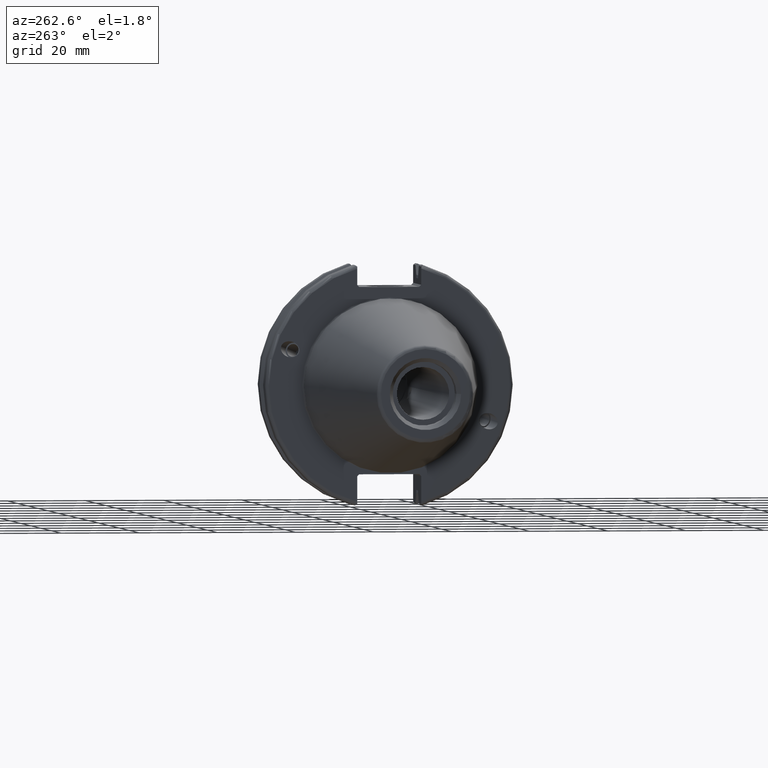
[diagram: clean part render]
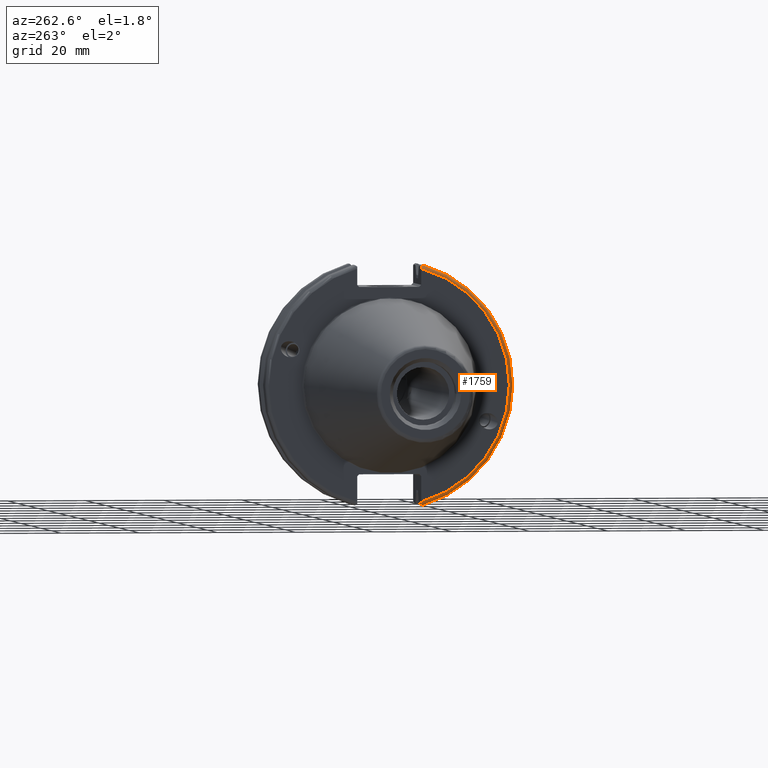
[diagram: same view with one face highlighted and labeled with its STEP entity id]
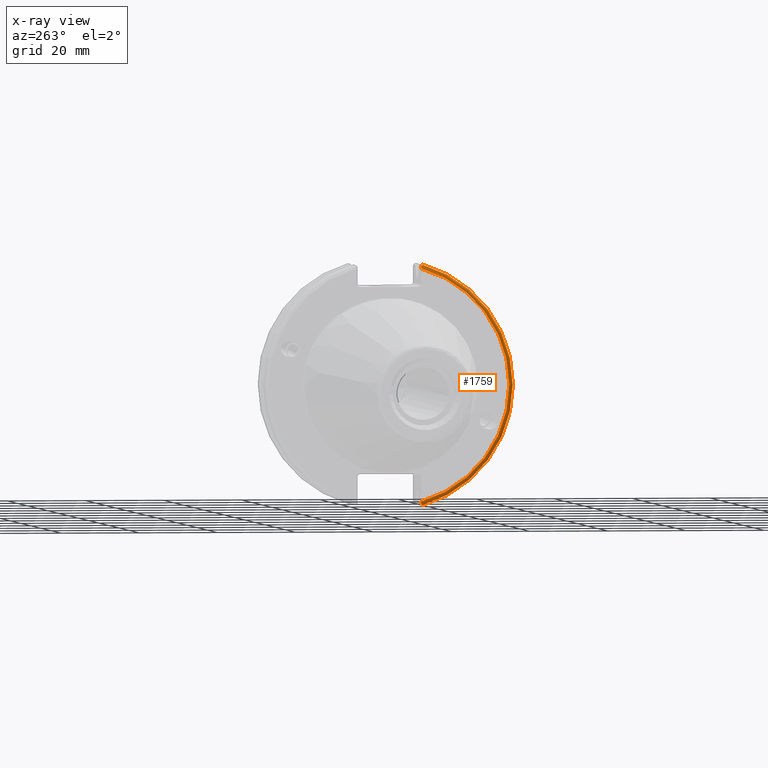
[diagram: x-ray of the same camera — body ghosted, the highlighted face saturated]
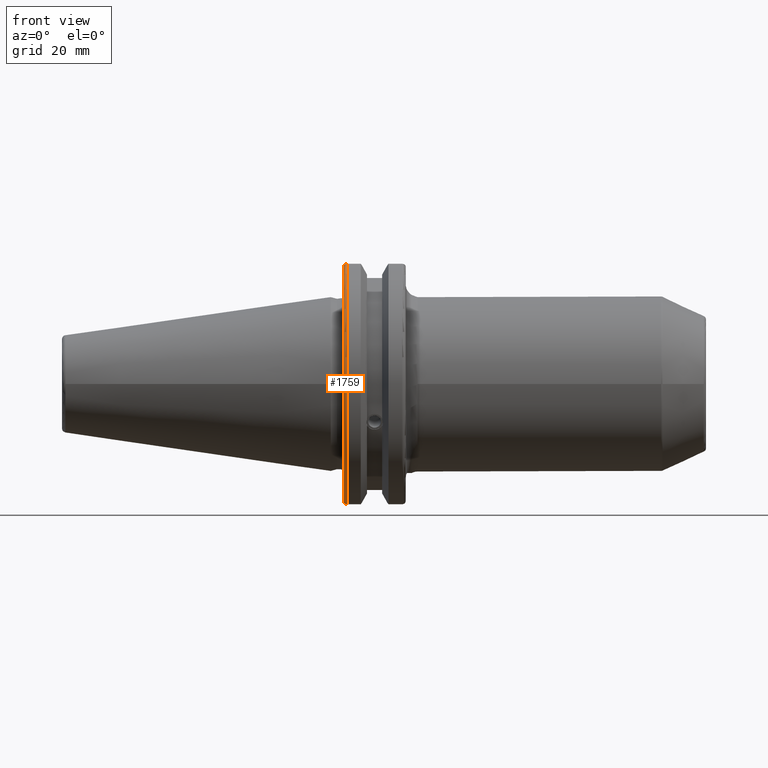
[diagram: same view with one face highlighted and labeled with its STEP entity id]
A machine part, auxiliary view. The second image highlights one B-rep face of the part: STEP entity #1759.
The next image is the same camera in x-ray: the body ghosted, the highlighted face saturated — about 0% of this face is hidden behind the body in this view.
A second angle (front view) of the same face is appended — the face is thin or edge-on in the first view.
In plain terms, the highlighted toroidal blend (fillet) surface has major radius 30.75 mm and minor (blend) radius 1 mm.
Its self-contained STEP definition (entity closure, byte-faithful):
#56=TOROIDAL_SURFACE('',#1969,30.75,1.);
#180=FACE_OUTER_BOUND('',#284,.T.);
#284=EDGE_LOOP('',(#1492,#1493,#1494,#1495,#1496,#1497));
#358=B_SPLINE_CURVE_WITH_KNOTS('',3,(#3341,#3342,#3343,#3344,#3345,#3346),
 .UNSPECIFIED.,.F.,.F.,(4,2,4),(0.0977210450333167,0.111963554372601,0.150804064902975),
 .UNSPECIFIED.);
#359=B_SPLINE_CURVE_WITH_KNOTS('',3,(#3367,#3368,#3369,#3370,#3371,#3372),
 .UNSPECIFIED.,.F.,.F.,(4,2,4),(0.452741154494498,0.491581665024872,0.505824174364157),
 .UNSPECIFIED.);
#360=B_SPLINE_CURVE_WITH_KNOTS('',3,(#3376,#3377,#3378,#3379,#3380,#3381,
#3382,#3383),.UNSPECIFIED.,.F.,.F.,(4,2,2,4),(-0.104180282751877,-0.0729784742461442,
-0.0343524753874977,0.),.UNSPECIFIED.);
#361=B_SPLINE_CURVE_WITH_KNOTS('',3,(#3386,#3387,#3388,#3389,#3390,#3391,
#3392,#3393),.UNSPECIFIED.,.F.,.F.,(4,2,2,4),(0.,0.0343524753874981,0.0729784742461436,
0.104180282751876),.UNSPECIFIED.);
#622=CIRCLE('',#1955,30.75);
#628=CIRCLE('',#1970,31.75);
#789=VERTEX_POINT('',#3218);
#790=VERTEX_POINT('',#3219);
#814=VERTEX_POINT('',#3340);
#820=VERTEX_POINT('',#3365);
#821=VERTEX_POINT('',#3375);
#822=VERTEX_POINT('',#3384);
#1022=EDGE_CURVE('',#789,#790,#622,.T.);
#1055=EDGE_CURVE('',#814,#789,#358,.T.);
#1065=EDGE_CURVE('',#790,#820,#359,.T.);
#1067=EDGE_CURVE('',#820,#821,#360,.T.);
#1068=EDGE_CURVE('',#821,#822,#628,.T.);
#1069=EDGE_CURVE('',#822,#814,#361,.T.);
#1492=ORIENTED_EDGE('',*,*,#1067,.T.);
#1493=ORIENTED_EDGE('',*,*,#1068,.T.);
#1494=ORIENTED_EDGE('',*,*,#1069,.T.);
#1495=ORIENTED_EDGE('',*,*,#1055,.T.);
#1496=ORIENTED_EDGE('',*,*,#1022,.T.);
#1497=ORIENTED_EDGE('',*,*,#1065,.T.);
#1759=ADVANCED_FACE('',(#180),#56,.T.);
#1955=AXIS2_PLACEMENT_3D('',#3220,#2357,#2358);
#1969=AXIS2_PLACEMENT_3D('',#3374,#2409,#2410);
#1970=AXIS2_PLACEMENT_3D('',#3385,#2411,#2412);
#2357=DIRECTION('center_axis',(1.,0.,0.));
#2358=DIRECTION('ref_axis',(0.,-1.,1.60812264967664E-16));
#2409=DIRECTION('center_axis',(1.,0.,0.));
#2410=DIRECTION('ref_axis',(0.,0.,-1.));
#2411=DIRECTION('center_axis',(-1.,0.,0.));
#2412=DIRECTION('ref_axis',(0.,-1.,1.60812264967664E-16));
#3218=CARTESIAN_POINT('',(3.175,-8.18999999999999,29.6392712461019));
#3219=CARTESIAN_POINT('',(3.175,-8.19,-29.6392712461019));
#3220=CARTESIAN_POINT('Origin',(3.175,0.,0.));
#3340=CARTESIAN_POINT('',(3.31912772509028,-8.19,30.1755016258903));
#3341=CARTESIAN_POINT('Ctrl Pts',(3.31912772509028,-8.19,30.1755016258903));
#3342=CARTESIAN_POINT('Ctrl Pts',(3.29318362718666,-8.19,30.131014531546));
#3343=CARTESIAN_POINT('Ctrl Pts',(3.27103565282437,-8.19,30.0852355256475));
#3344=CARTESIAN_POINT('Ctrl Pts',(3.20451443291695,-8.19,29.9212724384851));
#3345=CARTESIAN_POINT('Ctrl Pts',(3.175,-8.19,29.7687396145364));
#3346=CARTESIAN_POINT('Ctrl Pts',(3.175,-8.19,29.6392712461019));
#3365=CARTESIAN_POINT('',(3.31912772509028,-8.19,-30.1755016258903));
#3367=CARTESIAN_POINT('Ctrl Pts',(3.175,-8.19,-29.6392712461018));
#3368=CARTESIAN_POINT('Ctrl Pts',(3.175,-8.19,-29.7687396145364));
#3369=CARTESIAN_POINT('Ctrl Pts',(3.20451443291695,-8.19,-29.9212724384851));
#3370=CARTESIAN_POINT('Ctrl Pts',(3.27103565282437,-8.19,-30.0852355256475));
#3371=CARTESIAN_POINT('Ctrl Pts',(3.29318362718666,-8.19,-30.131014531546));
#3372=CARTESIAN_POINT('Ctrl Pts',(3.31912772509028,-8.19,-30.1755016258903));
#3374=CARTESIAN_POINT('Origin',(4.175,0.,0.));
#3375=CARTESIAN_POINT('',(4.175,-8.67204822802685,-30.5427254764662));
#3376=CARTESIAN_POINT('Ctrl Pts',(3.31912772509028,-8.19,-30.1755016258903));
#3377=CARTESIAN_POINT('Ctrl Pts',(3.36755369570113,-8.27036828330781,-30.2367261024977));
#3378=CARTESIAN_POINT('Ctrl Pts',(3.43232973376814,-8.34909446036477,-30.2966996242308));
#3379=CARTESIAN_POINT('Ctrl Pts',(3.58532758094931,-8.48862804755884,-30.4029961692546));
#3380=CARTESIAN_POINT('Ctrl Pts',(3.70655857052286,-8.56482138642532,-30.4610401774263));
#3381=CARTESIAN_POINT('Ctrl Pts',(3.92668295662254,-8.6471881193939,-30.5237870709558));
#3382=CARTESIAN_POINT('Ctrl Pts',(4.06049174870834,-8.67204822802686,-30.5427254764662));
#3383=CARTESIAN_POINT('Ctrl Pts',(4.175,-8.67204822802686,-30.5427254764662));
#3384=CARTESIAN_POINT('',(4.175,-8.67204822802685,30.5427254764662));
#3385=CARTESIAN_POINT('Origin',(4.175,0.,0.));
#3386=CARTESIAN_POINT('Ctrl Pts',(4.175,-8.67204822802686,30.5427254764662));
#3387=CARTESIAN_POINT('Ctrl Pts',(4.06049174870834,-8.67204822802686,30.5427254764662));
#3388=CARTESIAN_POINT('Ctrl Pts',(3.92668295662254,-8.64718811939389,30.5237870709558));
#3389=CARTESIAN_POINT('Ctrl Pts',(3.70655857052286,-8.56482138642532,30.4610401774263));
#3390=CARTESIAN_POINT('Ctrl Pts',(3.58532758094931,-8.48862804755884,30.4029961692546));
#3391=CARTESIAN_POINT('Ctrl Pts',(3.43232973376814,-8.34909446036478,30.2966996242308));
#3392=CARTESIAN_POINT('Ctrl Pts',(3.36755369570113,-8.2703682833078,30.2367261024977));
#3393=CARTESIAN_POINT('Ctrl Pts',(3.31912772509028,-8.19,30.1755016258903));